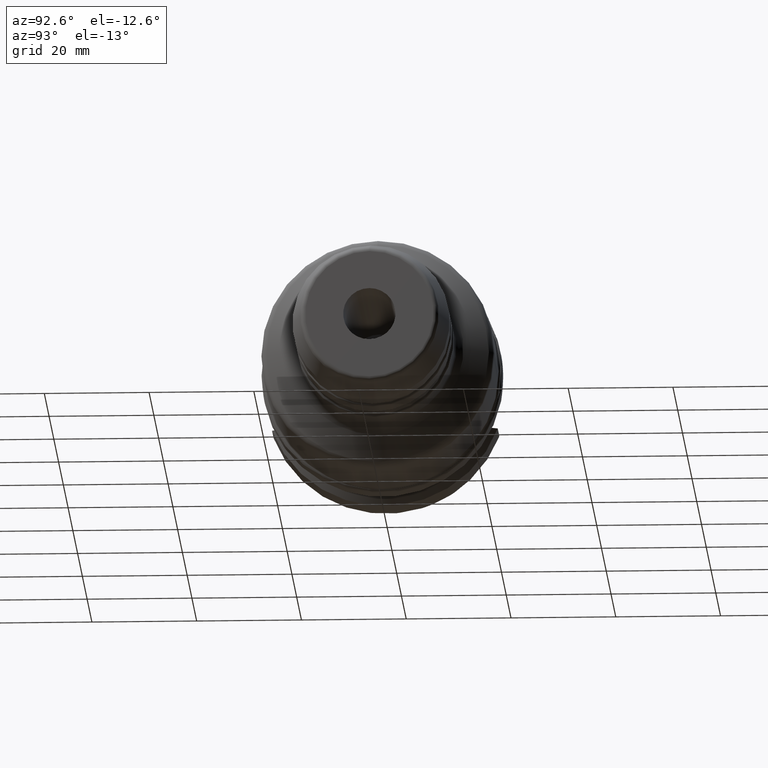
[diagram: clean part render]
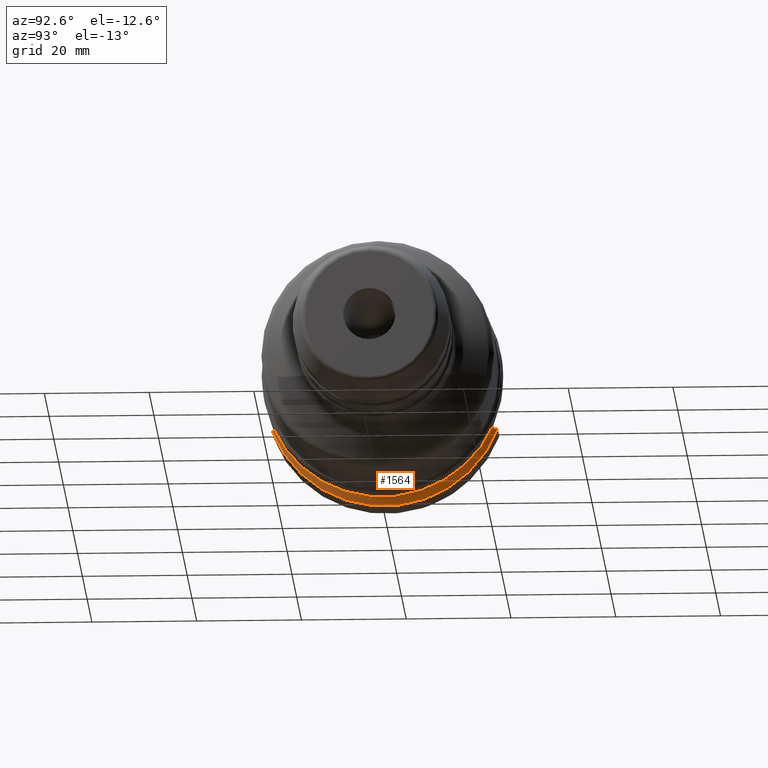
[diagram: same view with one face highlighted and labeled with its STEP entity id]
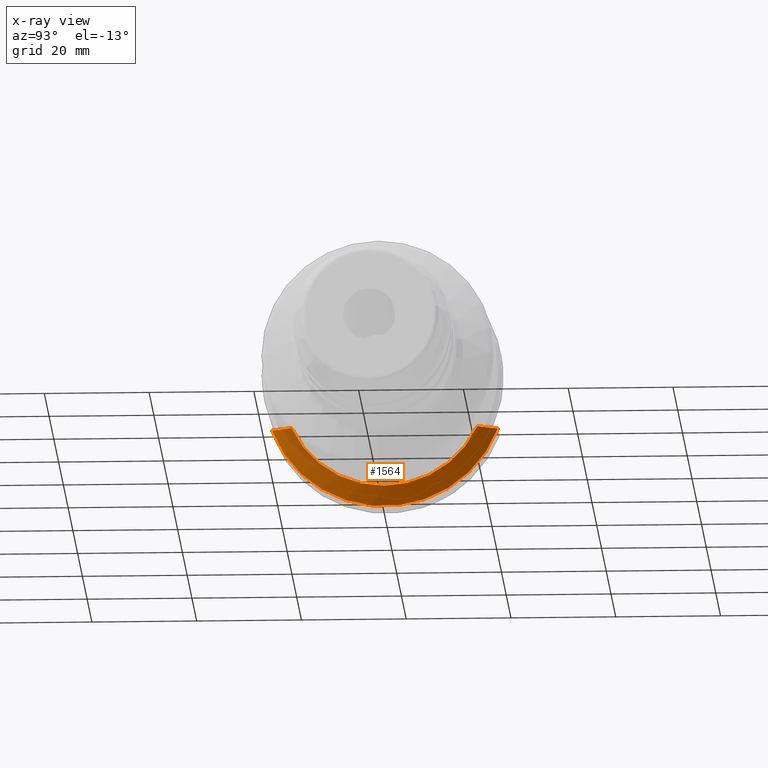
[diagram: x-ray of the same camera — body ghosted, the highlighted face saturated]
A machine part, auxiliary view. The second image highlights one B-rep face of the part: STEP entity #1564.
The next image is the same camera in x-ray: the body ghosted, the highlighted face saturated — about 8% of this face is hidden behind the body in this view.
In plain terms, the highlighted conical surface has half-angle 60.125 deg.
Its self-contained STEP definition (entity closure, byte-faithful):
#16=(
BOUNDED_CURVE()
B_SPLINE_CURVE(2,(#2953,#2954,#2955),.UNSPECIFIED.,.F.,.F.)
B_SPLINE_CURVE_WITH_KNOTS((3,3),(0.,0.293084380504246),.UNSPECIFIED.)
CURVE()
GEOMETRIC_REPRESENTATION_ITEM()
RATIONAL_B_SPLINE_CURVE((1.,1.0017633063523,1.))
REPRESENTATION_ITEM('')
);
#17=(
BOUNDED_CURVE()
B_SPLINE_CURVE(2,(#3013,#3014,#3015),.UNSPECIFIED.,.F.,.F.)
B_SPLINE_CURVE_WITH_KNOTS((3,3),(0.,0.293084380504246),.UNSPECIFIED.)
CURVE()
GEOMETRIC_REPRESENTATION_ITEM()
RATIONAL_B_SPLINE_CURVE((1.,1.00176330634961,1.))
REPRESENTATION_ITEM('')
);
#58=B_SPLINE_CURVE_WITH_KNOTS('',3,(#2905,#2906,#2907,#2908,#2909,#2910),
 .UNSPECIFIED.,.F.,.F.,(4,2,4),(4.61604422321114,4.74428492235839,4.7480998260749),
 .UNSPECIFIED.);
#66=B_SPLINE_CURVE_WITH_KNOTS('',3,(#3016,#3017,#3018,#3019),
 .UNSPECIFIED.,.F.,.F.,(4,4),(1.61083209868431,1.74084467628762),
 .UNSPECIFIED.);
#112=CONICAL_SURFACE('',#1785,21.2331286619655,1.04937921276161);
#376=FACE_OUTER_BOUND('',#480,.T.);
#480=EDGE_LOOP('',(#1345,#1346,#1347,#1348,#1349,#1350));
#590=CIRCLE('',#1784,19.466257323931);
#591=CIRCLE('',#1786,23.);
#721=VERTEX_POINT('',#2899);
#723=VERTEX_POINT('',#2903);
#730=VERTEX_POINT('',#2952);
#737=VERTEX_POINT('',#3004);
#739=VERTEX_POINT('',#3010);
#740=VERTEX_POINT('',#3012);
#925=EDGE_CURVE('',#721,#723,#58,.T.);
#936=EDGE_CURVE('',#723,#730,#16,.T.);
#951=EDGE_CURVE('',#721,#737,#590,.T.);
#954=EDGE_CURVE('',#730,#739,#591,.T.);
#955=EDGE_CURVE('',#739,#740,#17,.T.);
#956=EDGE_CURVE('',#740,#737,#66,.T.);
#1345=ORIENTED_EDGE('',*,*,#925,.T.);
#1346=ORIENTED_EDGE('',*,*,#936,.T.);
#1347=ORIENTED_EDGE('',*,*,#954,.T.);
#1348=ORIENTED_EDGE('',*,*,#955,.T.);
#1349=ORIENTED_EDGE('',*,*,#956,.T.);
#1350=ORIENTED_EDGE('',*,*,#951,.F.);
#1564=ADVANCED_FACE('',(#376),#112,.T.);
#1784=AXIS2_PLACEMENT_3D('',#3005,#2238,#2239);
#1785=AXIS2_PLACEMENT_3D('',#3009,#2242,#2243);
#1786=AXIS2_PLACEMENT_3D('',#3011,#2244,#2245);
#2238=DIRECTION('center_axis',(1.,1.62798202122572E-21,0.));
#2239=DIRECTION('ref_axis',(0.,0.,-1.));
#2242=DIRECTION('center_axis',(-1.,-1.62798202122572E-21,0.));
#2243=DIRECTION('ref_axis',(0.,1.,0.));
#2244=DIRECTION('center_axis',(1.,1.62798202122572E-21,0.));
#2245=DIRECTION('ref_axis',(0.,0.,-1.));
#2899=CARTESIAN_POINT('',(11.6,-17.7357033748735,-8.02371485036701));
#2903=CARTESIAN_POINT('',(10.95,-18.9595942383938,-8.05));
#2905=CARTESIAN_POINT('Ctrl Pts',(11.6,-17.7357033748735,-8.02371485036701));
#2906=CARTESIAN_POINT('Ctrl Pts',(11.3895462578573,-18.1300979399546,-8.04076367811623));
#2907=CARTESIAN_POINT('Ctrl Pts',(11.1790865920839,-18.5264447527878,-8.04947141492818));
#2908=CARTESIAN_POINT('Ctrl Pts',(10.9625118384736,-18.9359327756362,-8.04999321957019));
#2909=CARTESIAN_POINT('Ctrl Pts',(10.9562557806344,-18.9477631556681,-8.05));
#2910=CARTESIAN_POINT('Ctrl Pts',(10.95,-18.9595942383938,-8.05));
#2952=CARTESIAN_POINT('',(9.57005904049381,-21.5452430944744,-8.05));
#2953=CARTESIAN_POINT('Ctrl Pts',(10.95,-18.9595942383938,-8.05));
#2954=CARTESIAN_POINT('Ctrl Pts',(10.304074170198,-20.1811846958705,-8.05));
#2955=CARTESIAN_POINT('Ctrl Pts',(9.57005904049381,-21.5452430944744,-8.05));
#3004=CARTESIAN_POINT('',(11.6,17.7357033748735,-8.02371485036701));
#3005=CARTESIAN_POINT('Origin',(11.6,2.08175445421929E-15,0.));
#3009=CARTESIAN_POINT('Origin',(10.5850295202469,2.0817528018656E-15,0.));
#3010=CARTESIAN_POINT('',(9.57005904049381,21.5452430944744,-8.05));
#3011=CARTESIAN_POINT('Origin',(9.57005904049381,2.08175114951191E-15,0.));
#3012=CARTESIAN_POINT('',(10.95,18.9595942383938,-8.05));
#3013=CARTESIAN_POINT('Ctrl Pts',(9.57005904049381,21.5452430944744,-8.05));
#3014=CARTESIAN_POINT('Ctrl Pts',(10.3040741701966,20.181184695873,-8.05));
#3015=CARTESIAN_POINT('Ctrl Pts',(10.95,18.9595942383938,-8.05));
#3016=CARTESIAN_POINT('Ctrl Pts',(10.95,18.9595942383938,-8.05));
#3017=CARTESIAN_POINT('Ctrl Pts',(11.1645854420581,18.5537650917068,-8.05));
#3018=CARTESIAN_POINT('Ctrl Pts',(11.3814915897691,18.1451925506997,-8.04141618563362));
#3019=CARTESIAN_POINT('Ctrl Pts',(11.6,17.7357033748735,-8.02371485036701));